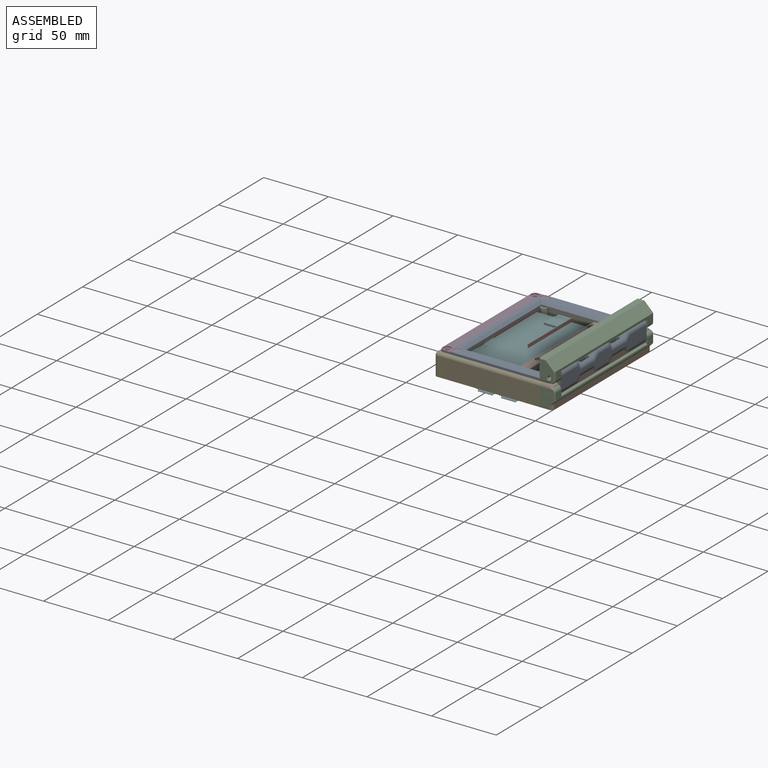
[diagram: assembled view]
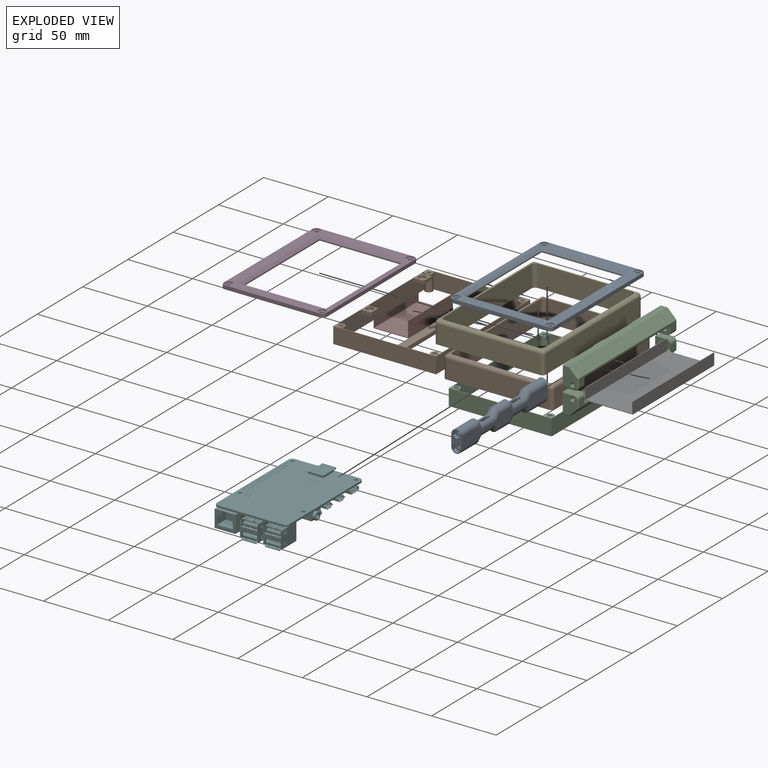
[diagram: exploded view]
GUIDED TOUR — FREECAD ASSEMBLY "hing-test"

This assembly has 11 components, labeled P0..P10 below (a component is one placed body or linked part; the same part can appear more than once), held together by 0 modeled joints plus 30 derived contact edges. A joint is a constraint between two components; its type names the relative motion it leaves free:
  CONTACT — a derived adjacency edge — the two components touch in the source model (clearance under 2% of the assembly's diagonal); it is measured from the geometry, not a modeled constraint.
Axis/direction vectors are unit vectors and 'through' points are millimeter coordinates, both in the assembly's world frame.

MATES
  1. CONTACT "contact_0_2": P0 <-> P2, contact direction (-0.975, 0.149, -0.163) through (40.27, -40.88, -0.14) mm (derived from contact, not a modeled constraint)
  2. CONTACT "contact_0_6": P0 <-> P6, contact direction (-0.975, 0.149, -0.163) through (43.36, -38.46, 0.06) mm (derived from contact, not a modeled constraint)
  3. CONTACT "contact_0_8": P0 <-> P8, contact direction (-1.000, 0.000, 0.000) through (44.40, -41.80, 3.13) mm (derived from contact, not a modeled constraint)
  4. CONTACT "contact_0_9": P0 <-> P9, contact direction (0.000, 1.000, 0.000) through (44.17, -41.51, 3.65) mm (derived from contact, not a modeled constraint)
  5. CONTACT "contact_0_10": P0 <-> P10, contact direction (1.000, 0.000, 0.000) through (48.67, 53.98, 0.15) mm (derived from contact, not a modeled constraint)
  6. CONTACT "contact_1_2": P1 <-> P2, contact direction (0.975, -0.149, 0.163) through (-35.00, -41.98, 0.00) mm (derived from contact, not a modeled constraint)
  7. CONTACT "contact_1_4": P1 <-> P4, contact direction (0.000, 0.000, 1.000) through (-41.50, -42.00, -12.50) mm (derived from contact, not a modeled constraint)
  8. CONTACT "contact_1_5": P1 <-> P5, contact direction (-0.130, -0.984, -0.125) through (-36.60, 47.28, -2.58) mm (derived from contact, not a modeled constraint)
  9. CONTACT "contact_1_6": P1 <-> P6, contact direction (1.000, 0.000, 0.000) through (8.46, 50.48, 0.00) mm (derived from contact, not a modeled constraint)
  10. CONTACT "contact_1_7": P1 <-> P7, contact direction (-0.975, 0.149, -0.163) through (-33.92, 51.60, 0.00) mm (derived from contact, not a modeled constraint)
  11. CONTACT "contact_1_9": P1 <-> P9, contact direction (1.000, 0.000, 0.000) through (-37.56, -45.18, -12.50) mm (derived from contact, not a modeled constraint)
  12. CONTACT "contact_1_10": P1 <-> P10, contact direction (0.975, -0.149, 0.163) through (37.25, 59.24, -12.71) mm (derived from contact, not a modeled constraint)
  13. CONTACT "contact_2_4": P2 <-> P4, contact direction (-0.179, -0.101, 0.979) through (40.06, 58.18, -12.50) mm (derived from contact, not a modeled constraint)
  14. CONTACT "contact_2_6": P2 <-> P6, contact direction (1.000, 0.000, 0.000) through (43.19, -39.28, 0.00) mm (derived from contact, not a modeled constraint)
  15. CONTACT "contact_2_7": P2 <-> P7, contact direction (0.000, 0.000, 1.000) through (-33.68, 52.34, 0.00) mm (derived from contact, not a modeled constraint)
  16. CONTACT "contact_2_9": P2 <-> P9, contact direction (0.000, 0.000, 1.000) through (41.00, -45.00, -12.50) mm (derived from contact, not a modeled constraint)
  17. CONTACT "contact_2_10": P2 <-> P10, contact direction (0.975, -0.149, 0.163) through (43.59, 53.91, 0.19) mm (derived from contact, not a modeled constraint)
  18. CONTACT "contact_3_4": P3 <-> P4, contact direction (0.000, 0.000, -1.000) through (37.08, -42.01, 4.86) mm (derived from contact, not a modeled constraint)
  19. CONTACT "contact_3_8": P3 <-> P8, contact direction (1.000, 0.000, 0.000) through (-35.18, 55.20, 6.25) mm (derived from contact, not a modeled constraint)
  20. CONTACT "contact_3_9": P3 <-> P9, contact direction (1.000, 0.000, 0.000) through (-34.91, -42.01, 4.86) mm (derived from contact, not a modeled constraint)
  21. CONTACT "contact_3_10": P3 <-> P10, contact direction (1.000, 0.000, 0.000) through (36.44, 59.11, 6.02) mm (derived from contact, not a modeled constraint)
  22. CONTACT "contact_4_8": P4 <-> P8, contact direction (0.975, -0.149, 0.163) through (37.37, -42.01, 4.98) mm (derived from contact, not a modeled constraint)
  23. CONTACT "contact_4_9": P4 <-> P9, contact direction (0.000, 0.000, 1.000) through (-38.00, 58.25, -12.50) mm (derived from contact, not a modeled constraint)
  24. CONTACT "contact_4_10": P4 <-> P10, contact direction (0.000, 0.000, 1.000) through (37.25, 60.99, 2.13) mm (derived from contact, not a modeled constraint)
  25. CONTACT "contact_5_7": P5 <-> P7, contact direction (-1.000, 0.000, 0.000) through (-8.09, 52.27, -0.58) mm (derived from contact, not a modeled constraint)
  26. CONTACT "contact_6_10": P6 <-> P10, contact direction (0.000, 1.000, 0.000) through (43.35, -39.96, 0.03) mm (derived from contact, not a modeled constraint)
  27. CONTACT "contact_7_9": P7 <-> P9, contact direction (0.975, -0.149, 0.163) through (-34.49, 53.50, -12.50) mm (derived from contact, not a modeled constraint)
  28. CONTACT "contact_8_9": P8 <-> P9, contact direction (0.000, 0.000, -1.000) through (42.58, 57.68, 4.98) mm (derived from contact, not a modeled constraint)
  29. CONTACT "contact_8_10": P8 <-> P10, contact direction (1.000, 0.000, 0.000) through (44.30, 54.49, 7.38) mm (derived from contact, not a modeled constraint)
  30. CONTACT "contact_9_10": P9 <-> P10, contact direction (1.000, 0.000, 0.000) through (46.00, 60.25, 3.02) mm (derived from contact, not a modeled constraint)

ASSEMBLY ORDER
  1. P9 — the base component [order heuristic]
  2. P0 [order heuristic]
  3. P1 [order heuristic]
  4. P2 [order heuristic]
  5. P3 [order heuristic]
  6. P4 [order heuristic]
  7. P7 [order heuristic]
  8. P8 [order heuristic]
  9. P10 [order heuristic]
  10. P5 [order heuristic]
  11. P6 [order heuristic]
Order-tag legend:
  [order heuristic] — this assembly is geometrically interlocked (no collision-free removal order exists), so components are listed in mate-graph order; insertion feasibility is not verified.

Of the 11 components, 10 carry a construction recipe — the FreeCAD feature program (sketches with constraints, then the solid features that consume them) that regenerates the part from scratch, quoted from this document or from the linked companion document it references; the rest are supplied as boundary geometry only. The tour below walks the components in assembly order: each is shown spotlighted twice — in the assembled view, then in the exploded view, where a leader line traces a displaced component back to its assembled socket (components that stay in place when exploded have no leader line; saturated green if recipe-attached, orange if geometry-only; every other component desaturated gray) — followed by its recipe or geometry summary and the mates that hold it.
NOTE — document 2 of 2 of this assembly tour. The two overview renders and the header above are repeated from document 1; the component sections below continue where the previous document stopped.
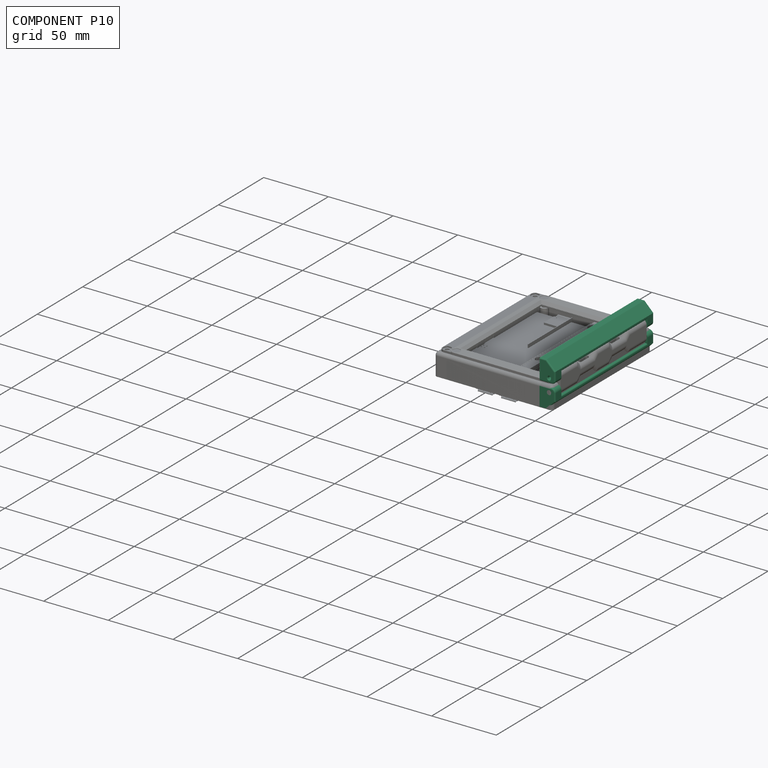
[diagram: component P10 — assembled]
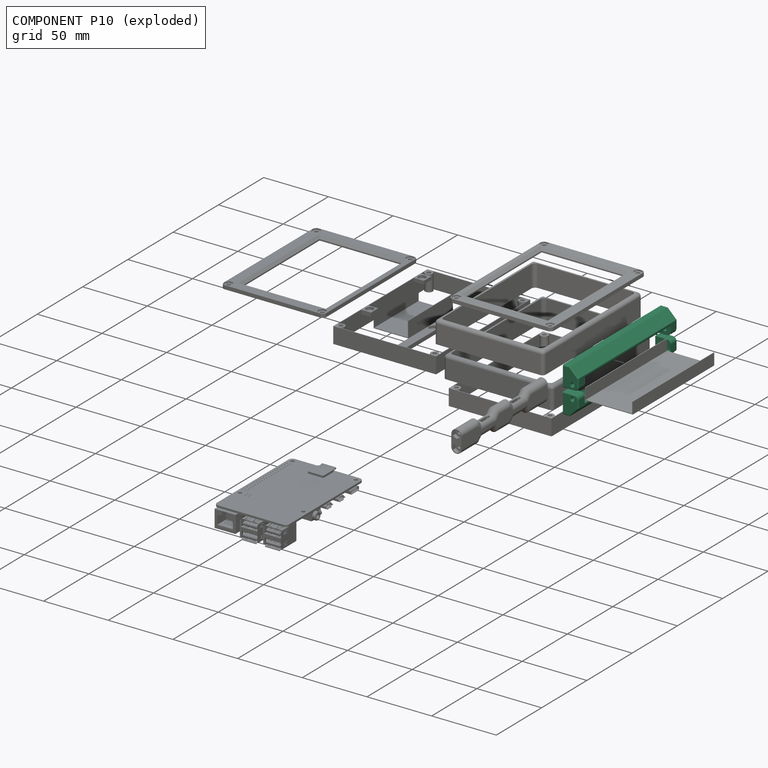
[diagram: component P10 — exploded]
COMPONENT P10 — recipe-attached ("new-pivot", modeled in this document).
Held by: resting contact with P0 (derived edge); resting contact with P1 (derived edge); resting contact with P2 (derived edge); resting contact with P3 (derived edge); resting contact with P4 (derived edge); resting contact with P6 (derived edge); resting contact with P8 (derived edge); resting contact with P9 (derived edge).
Construction recipe (the document's own serialized feature program — sketch geometry with constraints, then the solid features built on it; lengths are millimeters unless a unit is written):

FEATURE [Sketcher::SketchObject] Sketch049
  AttachmentOffset = pos=(0,0,37) rot=(0,0,1;0rad)
  FullyConstrained = true
  MapMode = 5
  Placement = pos=(37,-8.2e-15,8.2e-15) rot=(0.57735,0.57735,0.57735;2.0944rad)
  Support = -> [YZ_Plane052]
  sketch-geometry (8):
    g0: LineSegment StartX=-48 StartY=6 StartZ=0 EndX=-41 EndY=6 EndZ=0
    g1: LineSegment StartX=-41 StartY=6 StartZ=0 EndX=-41 EndY=13 EndZ=0
    g2: LineSegment StartX=61 StartY=6 StartZ=0 EndX=54 EndY=6 EndZ=0
    g3: LineSegment StartX=54 StartY=6 StartZ=0 EndX=54 EndY=13 EndZ=0
    g4: LineSegment StartX=-48 StartY=22 StartZ=0 EndX=61 EndY=22 EndZ=0
    g5: LineSegment StartX=54 StartY=13 StartZ=0 EndX=-41 EndY=13 EndZ=0
    g6: LineSegment StartX=61 StartY=22 StartZ=0 EndX=61 EndY=6 EndZ=0
    g7: LineSegment StartX=-48 StartY=22 StartZ=0 EndX=-48 EndY=6 EndZ=0
  constraints (24):
    c: Coincident(g0,g1)
    c: Horizontal(g0)
    c: Vertical(g1)
    c: Coincident(g2,g3)
    c: Horizontal(g2)
    c: Vertical(g3)
    c: Horizontal(g4)
    c: Horizontal(g5)
    c: Coincident(g1,g5)
    c: Coincident(g5,g3)
    c: DistanceX(g4,g4) = 109
    c: Coincident(g6,g4)
    c: Coincident(g6,g2)
    c: Vertical(g6)
    c: Coincident(g7,g4)
    c: Coincident(g7,g0)
    c: Vertical(g7)
    c: Equal(g1,g3)
    c: Equal(g0,g2)
    c: DistanceX(g4,g-1) = 48
    c: DistanceY(g-1,g4) = 22
    c: DistanceX(g5,g5) = 95
    c: DistanceY(g6,g6) = 16
    c: DistanceY(g3,g3) = 7
FEATURE [PartDesign::Pad] Pad012
  Direction = (1,-2e-16,3e-16)
  Length = 12
  Length2 = 10
  Placement = pos=(0,0,0) rot=(0.57735,0.57735,0.57735;2.0944rad)
  Profile = -> Sketch049
  ReferenceAxis = -> Sketch049 [N_Axis]
  Type = 0
FEATURE [PartDesign::Chamfer] Chamfer011
  Angle = 45
  Base = -> Pad012 [Edge24]
  BaseFeature = -> Pad012
  ChamferType = 0
  FlipDirection = false
  Placement = pos=(0,0,0) rot=(0.57735,0.57735,0.57735;2.0944rad)
  Size = 6.9
  Size2 = 1
  SupportTransform = false
  UseAllEdges = false
FEATURE [PartDesign::Fillet] Fillet025  label="Fillet026"
  Base = -> Chamfer011 [Edge21]
  BaseFeature = -> Chamfer011
  Placement = pos=(0,0,0) rot=(0.57735,0.57735,0.57735;2.0944rad)
  Radius = 1
  SupportTransform = false
  UseAllEdges = false
FEATURE [PartDesign::Fillet] Fillet024  label="Fillet025"
  Base = -> Fillet025 [Edge4,Edge9]
  BaseFeature = -> Fillet025
  Placement = pos=(0,0,0) rot=(0.57735,0.57735,0.57735;2.0944rad)
  Radius = 3
  SupportTransform = false
  UseAllEdges = false
FEATURE [PartDesign::Fillet] Fillet026  label="Fillet027"
  Base = -> Fillet024 [Edge19,Edge16,Edge4,Edge18,Edge20]
  BaseFeature = -> Fillet024
  Placement = pos=(0,0,0) rot=(0.57735,0.57735,0.57735;2.0944rad)
  Radius = 1
  SupportTransform = false
  UseAllEdges = false
FEATURE [Sketcher::SketchObject] Sketch050
  FullyConstrained = true
  MapMode = 5
  Placement = pos=(2.68e-14,61,-1.34e-14) rot=(0.57735,0.57735,0.57735;4.18879rad)
  Support = -> [Fillet026]
  sketch-geometry (1):
    g0: Circle CenterX=9.54001 CenterY=44.3562 CenterZ=0 NormalX=0 NormalY=0 NormalZ=1 AngleXU=0 Radius=1.25
  constraints (2):
    c: Diameter(g0) = 2.5
    c: Block(g0)
FEATURE [PartDesign::Pocket] Pocket019
  BaseFeature = -> Fillet026
  Direction = (-4e-16,-1,2e-16)
  Length = 5
  Length2 = 5
  Placement = pos=(0,0,0) rot=(0.57735,0.57735,0.57735;2.0944rad)
  Profile = -> Sketch050
  ReferenceAxis = -> Sketch050 [N_Axis]
  Type = 1
FEATURE [PartDesign::Chamfer] Chamfer012
  Angle = 45
  Base = -> Pocket019 [Edge46,Edge29]
  BaseFeature = -> Pocket019
  ChamferType = 0
  FlipDirection = false
  Placement = pos=(0,0,0) rot=(0.57735,0.57735,0.57735;2.0944rad)
  Size = 0.5
  Size2 = 1
  SupportTransform = false
  UseAllEdges = false
FEATURE [Sketcher::SketchObject] Sketch051
  AttachmentOffset = pos=(0,0,37) rot=(0,0,1;0rad)
  FullyConstrained = true
  MapMode = 5
  Placement = pos=(37,-8.2e-15,8.2e-15) rot=(0.57735,0.57735,0.57735;2.0944rad)
  Support = -> [YZ_Plane053]
  sketch-geometry (8):
    g0: LineSegment StartX=-48 StartY=6 StartZ=0 EndX=-41 EndY=6 EndZ=0
    g1: LineSegment StartX=-41 StartY=6 StartZ=0 EndX=-41 EndY=13 EndZ=0
    g2: LineSegment StartX=61 StartY=6 StartZ=0 EndX=54 EndY=6 EndZ=0
    g3: LineSegment StartX=54 StartY=6 StartZ=0 EndX=54 EndY=13 EndZ=0
    g4: LineSegment StartX=-48 StartY=22 StartZ=0 EndX=61 EndY=22 EndZ=0
    g5: LineSegment StartX=54 StartY=13 StartZ=0 EndX=-41 EndY=13 EndZ=0
    g6: LineSegment StartX=61 StartY=22 StartZ=0 EndX=61 EndY=6 EndZ=0
    g7: LineSegment StartX=-48 StartY=22 StartZ=0 EndX=-48 EndY=6 EndZ=0
  constraints (24):
    c: Coincident(g0,g1)
    c: Horizontal(g0)
    c: Vertical(g1)
    c: Coincident(g2,g3)
    c: Horizontal(g2)
    c: Vertical(g3)
    c: Horizontal(g4)
    c: Horizontal(g5)
    c: Coincident(g1,g5)
    c: Coincident(g5,g3)
    c: DistanceX(g4,g4) = 109
    c: Coincident(g6,g4)
    c: Coincident(g6,g2)
    c: Vertical(g6)
    c: Coincident(g7,g4)
    c: Coincident(g7,g0)
    c: Vertical(g7)
    c: Equal(g1,g3)
    c: Equal(g0,g2)
    c: DistanceX(g4,g-1) = 48
    c: DistanceY(g-1,g4) = 22
    c: DistanceX(g5,g5) = 95
    c: DistanceY(g6,g6) = 16
    c: DistanceY(g3,g3) = 7
FEATURE [PartDesign::Pad] Pad013
  Direction = (1,-2e-16,3e-16)
  Length = 12
  Length2 = 10
  Placement = pos=(0,0,0) rot=(0.57735,0.57735,0.57735;2.0944rad)
  Profile = -> Sketch051
  ReferenceAxis = -> Sketch051 [N_Axis]
  Type = 0
FEATURE [PartDesign::Chamfer] Chamfer013
  Angle = 45
  Base = -> Pad013 [Edge24]
  BaseFeature = -> Pad013
  ChamferType = 0
  FlipDirection = false
  Placement = pos=(0,0,0) rot=(0.57735,0.57735,0.57735;2.0944rad)
  Size = 6.9
  Size2 = 1
  SupportTransform = false
  UseAllEdges = false
FEATURE [PartDesign::Fillet] Fillet028  label="Fillet029"
  Base = -> Chamfer013 [Edge21]
  BaseFeature = -> Chamfer013
  Placement = pos=(0,0,0) rot=(0.57735,0.57735,0.57735;2.0944rad)
  Radius = 1
  SupportTransform = false
  UseAllEdges = false
FEATURE [PartDesign::Fillet] Fillet027  label="Fillet028"
  Base = -> Fillet028 [Edge4,Edge9]
  BaseFeature = -> Fillet028
  Placement = pos=(0,0,0) rot=(0.57735,0.57735,0.57735;2.0944rad)
  Radius = 3
  SupportTransform = false
  UseAllEdges = false
FEATURE [PartDesign::Fillet] Fillet029  label="Fillet030"
  Base = -> Fillet027 [Edge19,Edge16,Edge4,Edge18,Edge20]
  BaseFeature = -> Fillet027
  Placement = pos=(0,0,0) rot=(0.57735,0.57735,0.57735;2.0944rad)
  Radius = 1
  SupportTransform = false
  UseAllEdges = false
FEATURE [Sketcher::SketchObject] Sketch052
  FullyConstrained = true
  MapMode = 5
  Placement = pos=(2.68e-14,61,-1.34e-14) rot=(0.57735,0.57735,0.57735;4.18879rad)
  Support = -> [Fillet029]
  sketch-geometry (1):
    g0: Circle CenterX=9.54001 CenterY=44.3562 CenterZ=0 NormalX=0 NormalY=0 NormalZ=1 AngleXU=0 Radius=1.25
  constraints (2):
    c: Diameter(g0) = 2.5
    c: Block(g0)
FEATURE [PartDesign::Pocket] Pocket020
  BaseFeature = -> Fillet029
  Direction = (-4e-16,-1,2e-16)
  Length = 5
  Length2 = 5
  Placement = pos=(0,0,0) rot=(0.57735,0.57735,0.57735;2.0944rad)
  Profile = -> Sketch052
  ReferenceAxis = -> Sketch052 [N_Axis]
  Type = 1
FEATURE [PartDesign::Chamfer] Chamfer014
  Angle = 45
  Base = -> Pocket020 [Edge46,Edge29]
  BaseFeature = -> Pocket020
  ChamferType = 0
  FlipDirection = false
  Placement = pos=(0,0,0) rot=(0.57735,0.57735,0.57735;2.0944rad)
  Size = 0.5
  Size2 = 1
  SupportTransform = false
  UseAllEdges = false
FEATURE [PartDesign::Fillet] Fillet030  label="Fillet031"
  Base = -> Chamfer012 [Edge4,Edge6,Edge2,Edge3,Edge5]
  BaseFeature = -> Chamfer012
  Placement = pos=(0,0,0) rot=(0.57735,0.57735,0.57735;2.0944rad)
  Radius = 1
  SupportTransform = false
  UseAllEdges = false
FEATURE [PartDesign::Body] Body011  label="right"
  Group = -> [Sketch049,Pad012,Chamfer011,Fillet025,Fillet024,Fillet026,Sketch050,Pocket019,Chamfer012,Fillet030]
  Origin = -> Origin052
  Tip = -> Fillet030
FEATURE [PartDesign::Fillet] Fillet031  label="Fillet032"
  Base = -> Chamfer014 [Edge5,Edge3,Edge2,Edge4,Edge6]
  BaseFeature = -> Chamfer014
  Placement = pos=(0,0,0) rot=(0.57735,0.57735,0.57735;2.0944rad)
  Radius = 1
  SupportTransform = false
  UseAllEdges = false
FEATURE [PartDesign::Body] Body012  label="left"
  Group = -> [Sketch051,Pad013,Chamfer013,Fillet028,Fillet027,Fillet029,Sketch052,Pocket020,Chamfer014,Fillet031]
  Origin = -> Origin053
  Placement = pos=(1e-15,12.98,9.09) rot=(1,0,0;3.14159rad)
  Tip = -> Fillet031
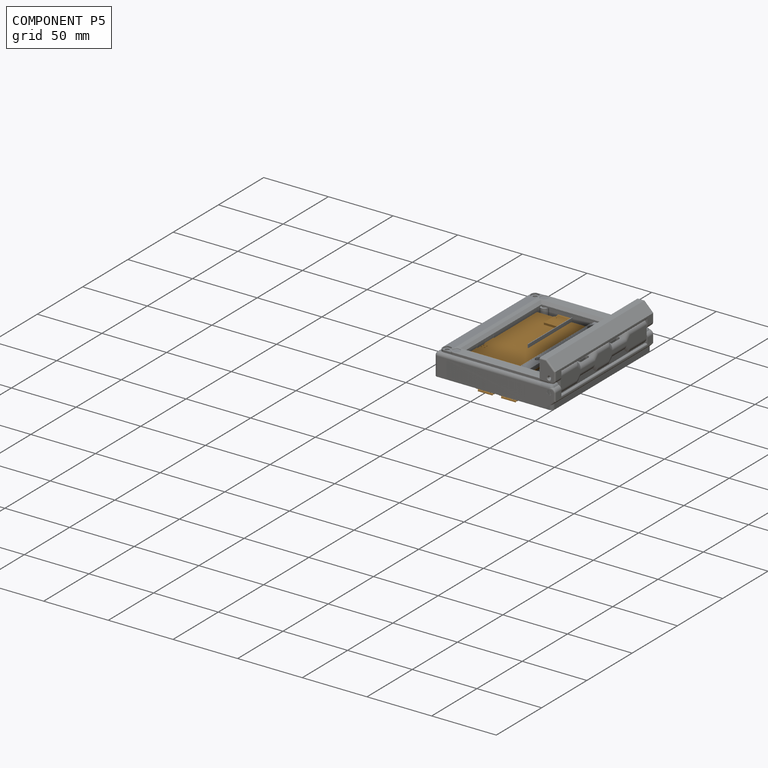
[diagram: component P5 — assembled]
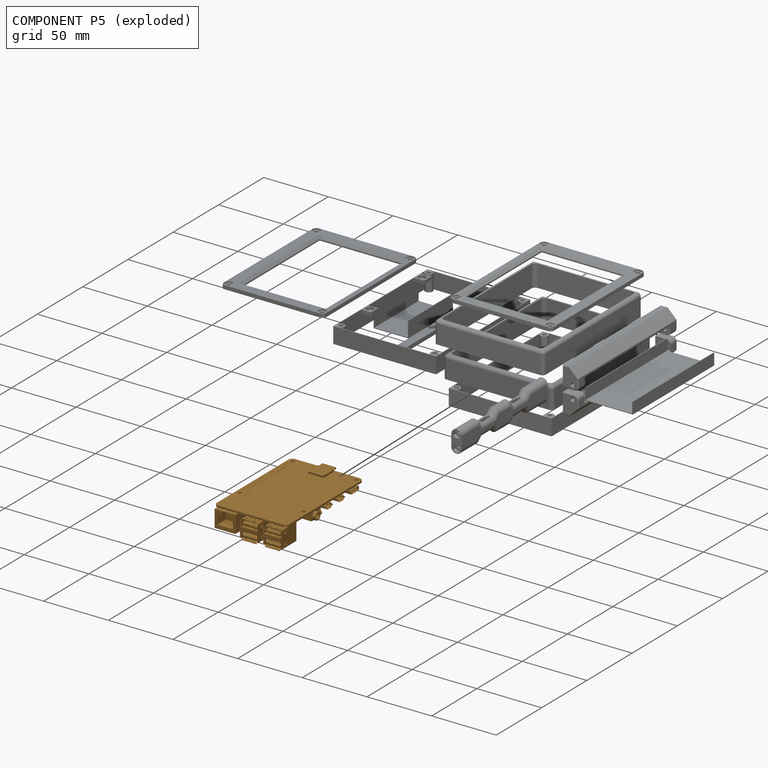
[diagram: component P5 — exploded]
COMPONENT P5 — geometry summary ("PCBA: Raspberry Pi 4B"; no construction recipe available for this part):
  bounding box: 90.1 x 58.5 x 19.0 mm
  tessellated surface: 39,306 triangles
  volume: 18599 mm^3 (19% of its bounding box)
Held by: resting contact with P1 (derived edge); resting contact with P7 (derived edge).
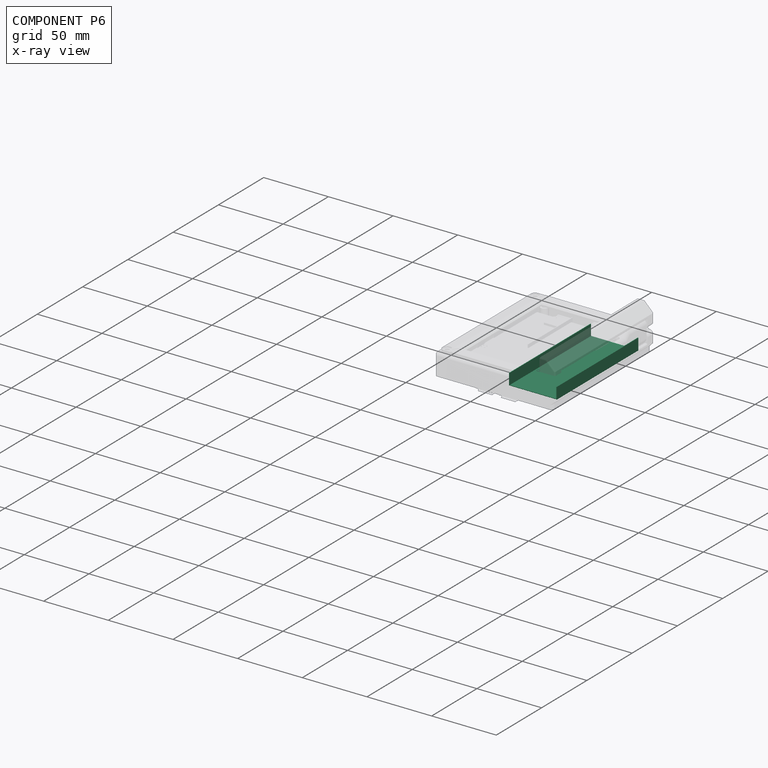
[diagram: component P6 — x-ray view]
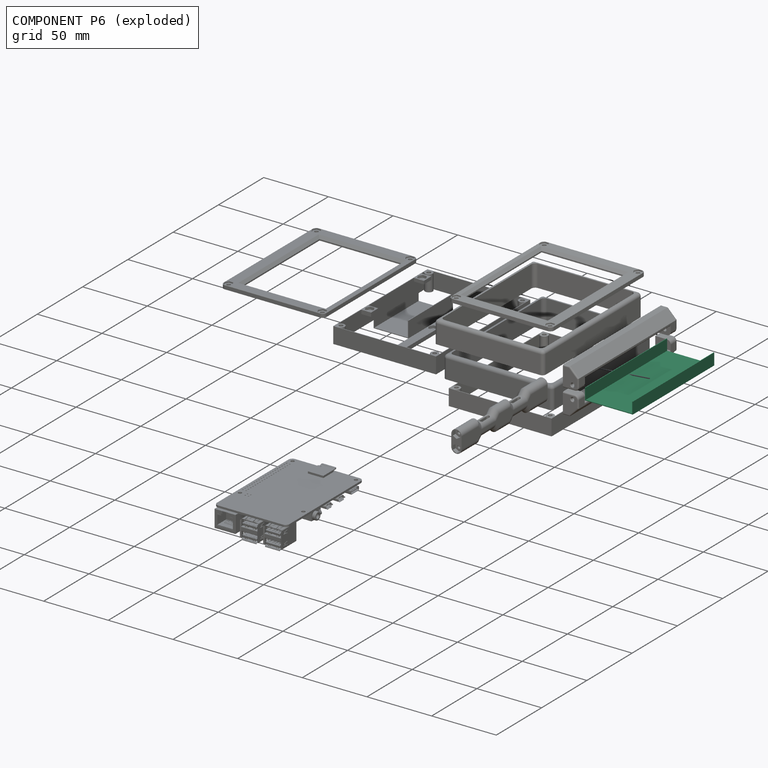
[diagram: component P6 — exploded]
COMPONENT P6 — recipe-attached ("2s lipo tray", modeled in this document).
Held by: resting contact with P0 (derived edge); resting contact with P1 (derived edge); resting contact with P2 (derived edge); resting contact with P10 (derived edge).
Construction recipe (the document's own serialized feature program — sketch geometry with constraints, then the solid features built on it; lengths are millimeters unless a unit is written):

FEATURE [Sketcher::SketchObject] Sketch038
  FullyConstrained = true
  MapMode = 5
  Placement = pos=(0,0,0) rot=(1,0,0;1.5708rad)
  Support = -> [XZ_Plane043]
  sketch-geometry (8):
    g0: LineSegment StartX=0.5 StartY=-8.5 StartZ=0 EndX=36.5 EndY=-8.5 EndZ=0
    g1: LineSegment StartX=36.5 StartY=-8.5 StartZ=0 EndX=36.5 EndY=0 EndZ=0
    g2: LineSegment StartX=36.5 StartY=0 StartZ=0 EndX=37 EndY=0 EndZ=0
    g3: LineSegment StartX=37 StartY=0 StartZ=0 EndX=37 EndY=-9 EndZ=0
    g4: LineSegment StartX=37 StartY=-9 StartZ=0 EndX=0 EndY=-9 EndZ=0
    g5: LineSegment StartX=0 StartY=-9 StartZ=0 EndX=0 EndY=0 EndZ=0
    g6: LineSegment StartX=0 StartY=0 StartZ=0 EndX=0.5 EndY=0 EndZ=0
    g7: LineSegment StartX=0.5 StartY=0 StartZ=0 EndX=0.5 EndY=-8.5 EndZ=0
  constraints (23):
    c: Horizontal(g0)
    c: Coincident(g0,g1)
    c: PointOnObject(g1,g-1)
    c: Vertical(g1)
    c: Coincident(g1,g2)
    c: PointOnObject(g2,g-1)
    c: Coincident(g2,g3)
    c: Vertical(g3)
    c: DistanceX(g0,g0) = 36
    c: DistanceX(g1,g2) = 0.5
    c: Coincident(g3,g4)
    c: Horizontal(g4)
    c: Coincident(g4,g5)
    c: Vertical(g5)
    c: Coincident(g5,g6)
    c: PointOnObject(g6,g-1)
    c: Coincident(g6,g7)
    c: Coincident(g7,g0)
    c: Vertical(g7)
    c: DistanceX(g6,g6) = 0.5
    c: DistanceY(g4,g0) = 0.5
    c: DistanceY(g7,g7) = 8.5
    c: Coincident(g5,g-1)
FEATURE [PartDesign::Pad] Pad007
  Direction = (0,-1,2e-16)
  Length = 90
  Length2 = 10
  Midplane = true
  Placement = pos=(0,0,0) rot=(1,0,0;1.5708rad)
  Profile = -> Sketch038
  ReferenceAxis = -> Sketch038 [N_Axis]
  Type = 0
FEATURE [PartDesign::Body] Body006  label="Body012"
  Group = -> [Sketch038,Pad007]
  Origin = -> Origin043
  Tip = -> Pad007
PROVENANCE & LICENSES
Assembly and component geometry: a FreeCAD (.FCStd) document from a public repository crawl; components, placements and joints were extracted with FreeCAD and each solid tessellated.
Construction recipes: the document's own serialized feature recipes (and, for linked parts, the recipes of companion documents from the same project).
License: as declared in the source repository (recorded in the dataset sidecar).
Joints: native FreeCAD joints and A2plus constraints are mapped to standard mate types; edges marked 'derived from contact' connect touching components and are measured from the geometry, not modeled.
Verification: 10 of this assembly's 11 components carry a construction recipe (10 from this document itself); the rest are geometry-only. Every component's tessellation passed the extraction mesh gates (mesh-volume checksum against the B-rep where available, bounding-box inflation <= 2%).
Renders: orthographic iso camera (az 35 / el 25); the floor grid conveys scale (grid pitch printed in each image; no ruler). In the exploded view each component is displaced by its stored offset vector: the offsets alone carry the explosion direction (mate normal/axis signs are not orientation cues and do not encode it), and separation distances are assigned per mate-chain, not proportionally to assembly-order depth.
